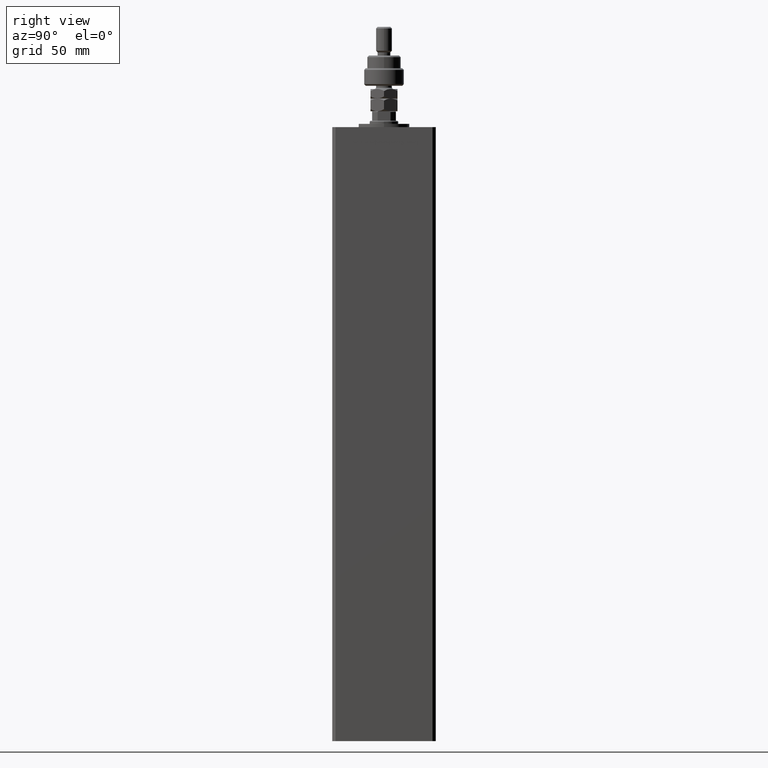
[diagram: clean part render]
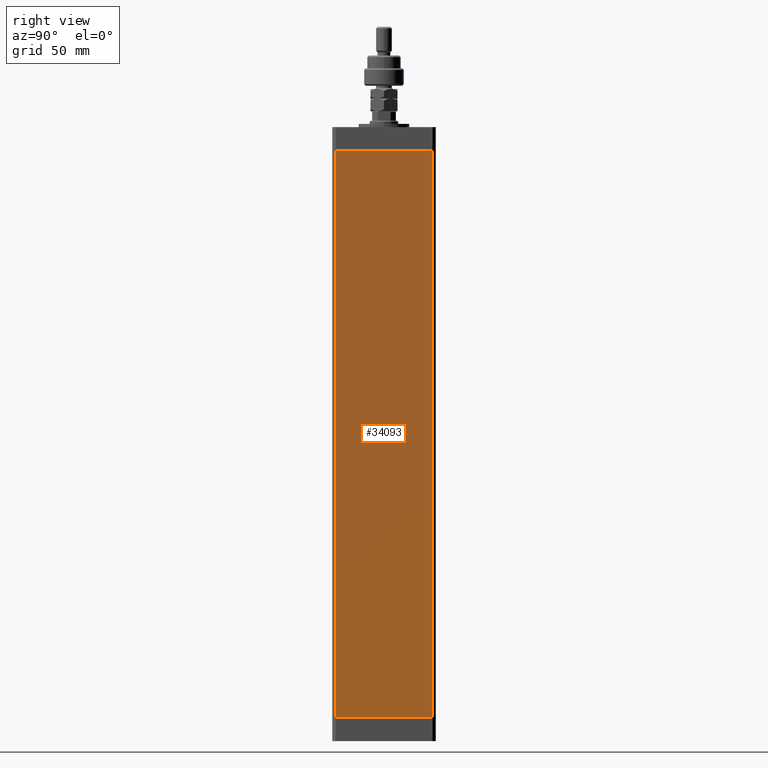
[diagram: same view with one face highlighted and labeled with its STEP entity id]
A machine part, right view. The second image highlights one B-rep face of the part: STEP entity #34093.
In plain terms, the highlighted planar face has unit normal (1, -0, 0).
Its self-contained STEP definition (entity closure, byte-faithful):
#38 = LINE ( 'NONE', #25162, #49414 ) ;
#1701 = DIRECTION ( 'NONE',  ( 1.000000000000000000, -2.275047181608927644E-16, 0.000000000000000000 ) ) ;
#2553 = ORIENTED_EDGE ( 'NONE', *, *, #37436, .T. ) ;
#2928 = DIRECTION ( 'NONE',  ( -0.000000000000000000, -0.000000000000000000, -1.000000000000000000 ) ) ;
#3972 = VECTOR ( 'NONE', #35061, 1000.000000000000000 ) ;
#4178 = DIRECTION ( 'NONE',  ( -2.275047181608927644E-16, -1.000000000000000000, 0.000000000000000000 ) ) ;
#8169 = LINE ( 'NONE', #24752, #16376 ) ;
#8445 = EDGE_LOOP ( 'NONE', ( #54379, #44185, #2553, #28227 ) ) ;
#10264 = PLANE ( 'NONE',  #42616 ) ;
#12161 = CARTESIAN_POINT ( 'NONE',  ( 37.50000000000000711, 30.50000000000000000, 0.000000000000000000 ) ) ;
#14699 = VERTEX_POINT ( 'NONE', #52186 ) ;
#15143 = VERTEX_POINT ( 'NONE', #41867 ) ;
#16376 = VECTOR ( 'NONE', #2928, 1000.000000000000000 ) ;
#18226 = CARTESIAN_POINT ( 'NONE',  ( 37.50000000000000711, 30.50000000000000000, 356.0000000000000000 ) ) ;
#24590 = CARTESIAN_POINT ( 'NONE',  ( 37.50000000000000711, 30.50000000000000000, 356.0000000000000000 ) ) ;
#24752 = CARTESIAN_POINT ( 'NONE',  ( 37.49999999999999289, -30.50000000000000000, 356.0000000000000000 ) ) ;
#25162 = CARTESIAN_POINT ( 'NONE',  ( 37.50000000000000711, 30.50000000000000000, 356.0000000000000000 ) ) ;
#26070 = VECTOR ( 'NONE', #4178, 1000.000000000000000 ) ;
#26571 = DIRECTION ( 'NONE',  ( 2.275047181608927644E-16, 1.000000000000000000, 0.000000000000000000 ) ) ;
#26840 = CARTESIAN_POINT ( 'NONE',  ( 37.50000000000000711, 30.50000000000000000, 356.0000000000000000 ) ) ;
#27119 = FACE_OUTER_BOUND ( 'NONE', #8445, .T. ) ;
#28227 = ORIENTED_EDGE ( 'NONE', *, *, #43912, .T. ) ;
#29049 = LINE ( 'NONE', #41997, #26070 ) ;
#29179 = EDGE_CURVE ( 'NONE', #52344, #41340, #38, .T. ) ;
#34093 = ADVANCED_FACE ( 'NONE', ( #27119 ), #10264, .T. ) ;
#35061 = DIRECTION ( 'NONE',  ( -2.275047181608927644E-16, -1.000000000000000000, 0.000000000000000000 ) ) ;
#37436 = EDGE_CURVE ( 'NONE', #52344, #14699, #52182, .T. ) ;
#40434 = EDGE_CURVE ( 'NONE', #41340, #15143, #29049, .T. ) ;
#41340 = VERTEX_POINT ( 'NONE', #12161 ) ;
#41867 = CARTESIAN_POINT ( 'NONE',  ( 37.49999999999999289, -30.50000000000000000, 0.000000000000000000 ) ) ;
#41997 = CARTESIAN_POINT ( 'NONE',  ( 37.50000000000000711, 30.50000000000000000, 0.000000000000000000 ) ) ;
#42001 = DIRECTION ( 'NONE',  ( -0.000000000000000000, -0.000000000000000000, -1.000000000000000000 ) ) ;
#42616 = AXIS2_PLACEMENT_3D ( 'NONE', #26840, #1701, #26571 ) ;
#43912 = EDGE_CURVE ( 'NONE', #14699, #15143, #8169, .T. ) ;
#44185 = ORIENTED_EDGE ( 'NONE', *, *, #29179, .F. ) ;
#49414 = VECTOR ( 'NONE', #42001, 1000.000000000000000 ) ;
#52182 = LINE ( 'NONE', #18226, #3972 ) ;
#52186 = CARTESIAN_POINT ( 'NONE',  ( 37.49999999999999289, -30.50000000000000000, 356.0000000000000000 ) ) ;
#52344 = VERTEX_POINT ( 'NONE', #24590 ) ;
#54379 = ORIENTED_EDGE ( 'NONE', *, *, #40434, .F. ) ;